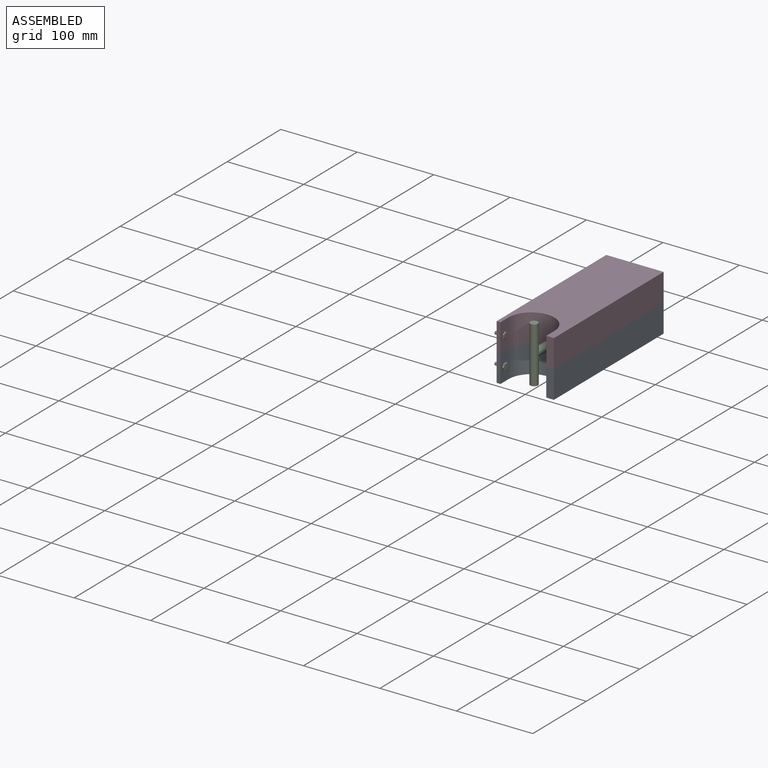
[diagram: assembled view]
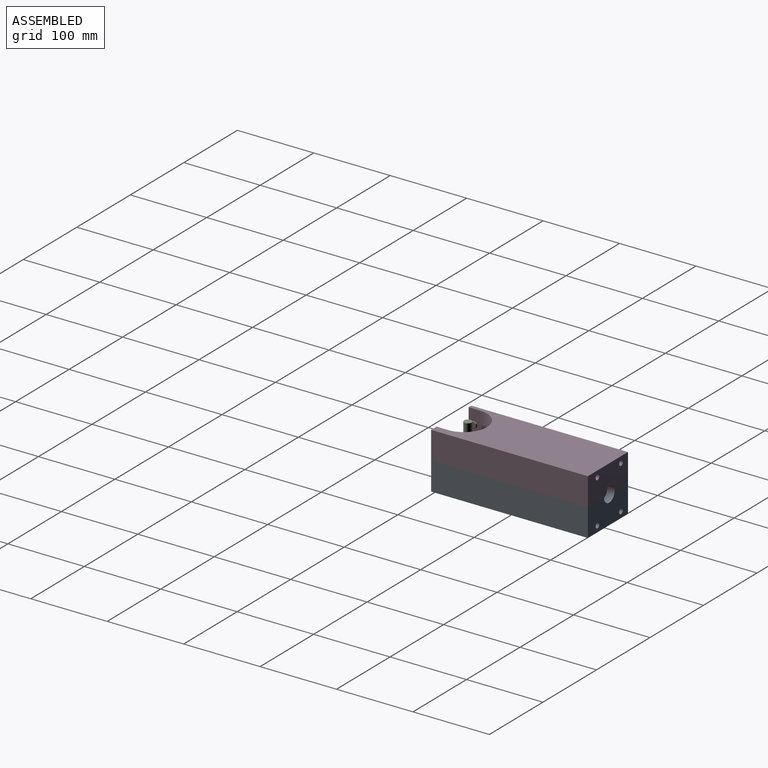
[diagram: assembled view, second angle]
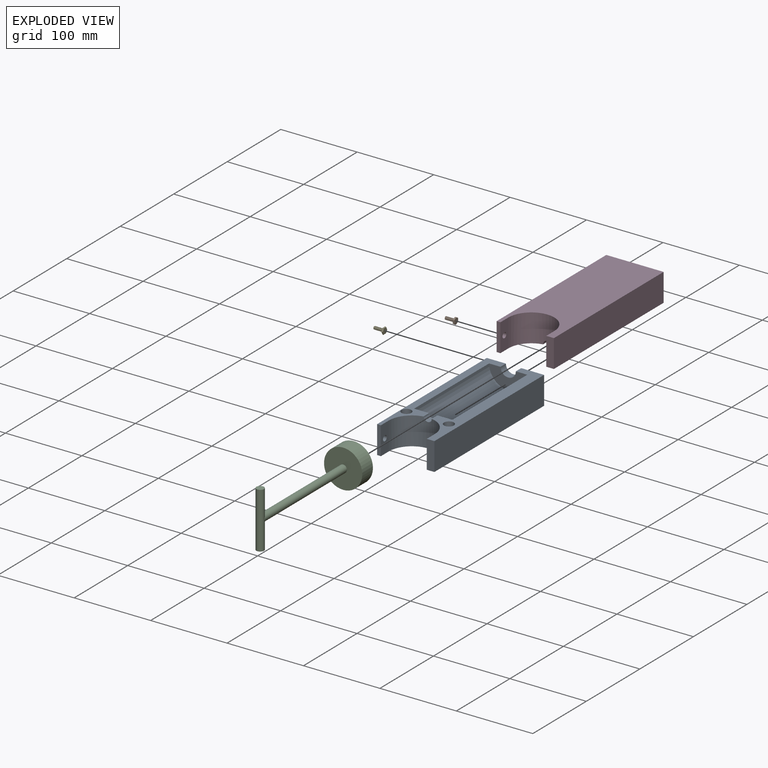
[diagram: exploded view]
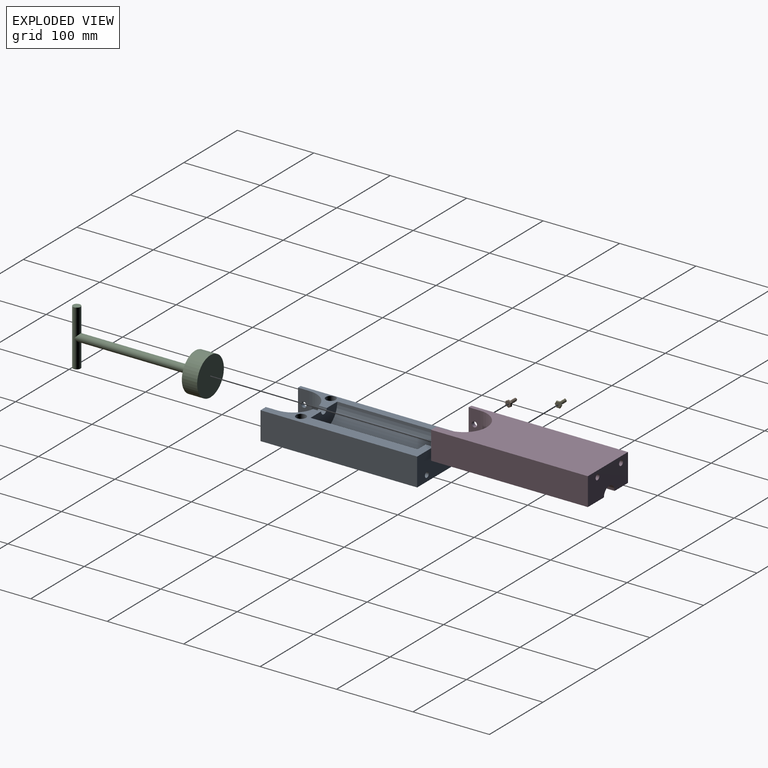
[diagram: exploded view, second angle]
ASSEMBLY  parts=5 mates=4
PART A: 23 faces, bbox 75x205x36.5 mm
  f0: cylinder r=30mm len=60mm, axis (0,0,1), area 3395.7mm2, adj f6,f7,f8,f13,f18,f19
  f1: plane 36.5x5mm, normal (0,-1,0), area 182.5mm2, adj f2,f6,f13,f19
  f2: plane 205x36.5mm, normal (-1,0,0), area 7444mm2, adj f1,f4,f13,f19,f20
  f3: plane 205x36.5mm, normal (1,0,0), area 7482.5mm2, adj f4,f5,f13,f18
  f4: plane 75x36.5mm, normal (0,1,0), area 2503.5mm2, adj f2,f3,f12,f13,f15,f17,f18,f19
  f5: plane 36.5x10mm, normal (0,-1,0), area 365mm2, adj f3,f7,f13,f18
  f6: plane 36.5x15mm, normal (1,0,0), area 509mm2, adj f0,f1,f13,f19,f20
  f7: plane 36.5x15mm, normal (-1,0,0), area 547.5mm2, adj f0,f5,f13,f18
  f8: cylinder r=5.3mm len=10.6mm, axis (0,-1,0), area 170.4mm2, adj f0,f9,f18,f19
  f9: plane 50x25mm, normal (0,1,0), area 937.6mm2, adj f8,f10,f18,f19
  f10: cylinder r=25mm len=140mm, axis (0,-1,0), area 10995.6mm2, adj f9,f11,f18,f19
  f11: plane 50x25mm, normal (0,-1,0), area 824.7mm2, adj f10,f12,f18,f19
  f12: cylinder r=10mm len=20mm, axis (0,-1,0), area 314.2mm2, adj f4,f11,f18,f19
  f13: plane 205x75mm, normal (0,0,-1), area 12795.8mm2, adj f0,f1,f2,f3,f4,f5,f6,f7
  f14: cone r=0mm half-angle=59deg, axis (0,1,0), area 44.9mm2, adj f15
  f15: cylinder r=3.5mm len=25mm, axis (0,1,0), area 549.8mm2, adj f4,f14
  f16: cone r=0mm half-angle=59deg, axis (0,1,0), area 44.9mm2, adj f17
  f17: cylinder r=3.5mm len=25mm, axis (0,1,0), area 549.8mm2, adj f4,f16
  f18: plane 205x34.7mm, normal (0,0,1), area 3256.6mm2, adj f0,f3,f4,f5,f7,f8,f9,f10
  f19: plane 205x29.7mm, normal (0,0,1), area 2231.6mm2, adj f0,f1,f2,f4,f6,f8,f9,f10
  f20: cylinder r=3.5mm len=7mm, axis (-1,0,0), area 110mm2, adj f2,f6
  f21: cylinder r=6.5mm len=36.5mm, axis (0,0,1), area 1490.7mm2, adj f13,f19
  f22: cylinder r=6.5mm len=36.5mm, axis (0,0,1), area 1490.7mm2, adj f13,f18
PART B: 27 faces, bbox 8.2x9.4x14.4 mm
  f0: plane 8.29x7.21mm, normal (0,0,1), area 34.7mm2, adj f1,f9,f10,f11,f12,f13,f14,f24
  f1: cylinder r=1.5mm len=12mm, axis (0,0,-1), area 63.4mm2, adj f0,f21,f23,f24,f25,f26
  f2: plane 4x2.31mm, normal (-0.5,-0.87,0), area 4.6mm2, adj f3,f7,f12,f18
  f3: plane 4x2.31mm, normal (0.5,-0.87,0), area 4.6mm2, adj f2,f4,f14,f20
  f4: plane 4.62x1mm, normal (1,0,0), area 4.6mm2, adj f3,f5,f13,f19
  f5: plane 4x2.31mm, normal (0.5,0.87,0), area 4.6mm2, adj f4,f6,f11,f17
  f6: plane 4x2.31mm, normal (-0.5,0.87,0), area 4.6mm2, adj f5,f7,f9,f15
  f7: plane 4.62x1mm, normal (-1,0,0), area 4.6mm2, adj f2,f6,f10,f16
  f8: plane 8.08x7mm, normal (0,0,-1), area 42.4mm2, adj f15,f16,f17,f18,f19,f20
  f9: plane 4x2.6mm, normal (-0.35,0.61,0.71), area 3.1mm2, adj f0,f6,f10,f11
  f10: plane 4.62x0.5mm, normal (-0.71,0,0.71), area 3.1mm2, adj f0,f7,f9,f12
  f11: plane 4x2.6mm, normal (0.35,0.61,0.71), area 3.1mm2, adj f0,f5,f9,f13
  f12: plane 4x2.6mm, normal (-0.35,-0.61,0.71), area 3.1mm2, adj f0,f2,f10,f14
  f13: plane 4.62x0.5mm, normal (0.71,0,0.71), area 3.1mm2, adj f0,f4,f11,f14
  f14: plane 4x2.6mm, normal (0.35,-0.61,0.71), area 3.1mm2, adj f0,f3,f12,f13
  f15: plane 4x2.6mm, normal (-0.35,0.61,-0.71), area 3.1mm2, adj f6,f8,f16,f17
  f16: plane 4.62x0.5mm, normal (-0.71,0,-0.71), area 3.1mm2, adj f7,f8,f15,f18
  f17: plane 4x2.6mm, normal (0.35,0.61,-0.71), area 3.1mm2, adj f5,f8,f15,f19
  f18: plane 4x2.6mm, normal (-0.35,-0.61,-0.71), area 3.1mm2, adj f2,f8,f16,f20
  f19: plane 4.62x0.5mm, normal (0.71,0,-0.71), area 3.1mm2, adj f4,f8,f17,f20
  f20: plane 4x2.6mm, normal (0.35,-0.61,-0.71), area 3.1mm2, adj f3,f8,f18,f19
  f21: plane 3x3mm, normal (0,0,1), area 7.1mm2, adj f1,f22
  f22: cylinder r=1.5mm len=1.39mm, axis (0,0,-1), area 0.1mm2, adj f21,f23,f26
  f23: plane 0.5x0.35mm, normal (0,1,0), area 0.1mm2, adj f1,f22,f25,f26
  f24: plane 0.5x0.15mm, normal (0,-1,0), area 0mm2, adj f0,f1,f26
  f25: bspline ~12.2x4.62mm, area 88.1mm2, adj f0,f1,f23,f26
  f26: bspline ~12.15x4.62mm, area 86.1mm2, adj f1,f22,f23,f24,f25
PART C: 7 faces, bbox 50x180x73 mm
  f0: cylinder r=5mm len=155mm, axis (0,1,0), area 4769.5mm2, adj f3,f6
  f1: cylinder r=25mm len=50mm, axis (0,-1,0), area 3141.6mm2, adj f2,f3
  f2: plane 50x50mm, normal (0,1,0), area 1963.5mm2, adj f1
  f3: plane 50x50mm, normal (0,-1,0), area 1885mm2, adj f0,f1
  f4: plane 10x10mm, normal (0,0,-1), area 78.5mm2, adj f6
  f5: plane 10x10mm, normal (0,0,1), area 78.5mm2, adj f6
  f6: cylinder r=5mm len=73mm, axis (0,0,1), area 2193.4mm2, adj f0,f4,f5
PART D: 25 faces, bbox 75x205x36.5 mm
  f0: cone r=0mm half-angle=59deg, axis (0,1,0), area 44.9mm2, adj f2
  f1: cone r=0mm half-angle=59deg, axis (0,1,0), area 44.9mm2, adj f3
  f2: cylinder r=3.5mm len=25mm, axis (0,1,0), area 549.8mm2, adj f0,f10
  f3: cylinder r=3.5mm len=25mm, axis (0,1,0), area 549.8mm2, adj f1,f10
  f4: plane 205x75mm, normal (0,0,1), area 13061.3mm2, adj f10,f11,f12,f13,f14,f15,f16,f17
  f5: cylinder r=10mm len=20mm, axis (0,-1,0), area 314.2mm2, adj f6,f10,f18,f19
  f6: plane 50x25mm, normal (0,-1,0), area 824.7mm2, adj f5,f7,f18,f19
  f7: cylinder r=25mm len=140mm, axis (0,-1,0), area 10995.6mm2, adj f6,f8,f18,f19
  f8: plane 50x25mm, normal (0,1,0), area 937.6mm2, adj f7,f9,f18,f19
  f9: cylinder r=5.3mm len=10.6mm, axis (0,-1,0), area 170.4mm2, adj f8,f17,f18,f19
  f10: plane 75x36.5mm, normal (0,1,0), area 2503.5mm2, adj f2,f3,f4,f5,f13,f14,f18,f19
  f11: plane 36.5x15mm, normal (-1,0,0), area 547.5mm2, adj f4,f12,f17,f18
  f12: plane 36.5x10mm, normal (0,-1,0), area 365mm2, adj f4,f11,f13,f18
  f13: plane 205x36.5mm, normal (1,0,0), area 7482.5mm2, adj f4,f10,f12,f18
  f14: plane 205x36.5mm, normal (-1,0,0), area 7444mm2, adj f4,f10,f16,f19,f20
  f15: plane 36.5x15mm, normal (1,0,0), area 509mm2, adj f4,f16,f17,f19,f20
  f16: plane 36.5x5mm, normal (0,-1,0), area 182.5mm2, adj f4,f14,f15,f19
  f17: cylinder r=30mm len=60mm, axis (0,0,1), area 3395.8mm2, adj f4,f9,f11,f15,f18,f19
  f18: plane 205x34.7mm, normal (0,0,-1), area 3350.8mm2, adj f5,f6,f7,f8,f9,f10,f11,f12
  f19: plane 205x29.7mm, normal (0,0,-1), area 2325.8mm2, adj f5,f6,f7,f8,f9,f10,f14,f15
  f20: cylinder r=3.5mm len=7mm, axis (-1,0,0), area 110mm2, adj f14,f15
  f21: cylinder r=3.5mm len=15mm, axis (0,0,1), area 329.9mm2, adj f19,f22
  f22: plane 7x7mm, normal (0,0,-1), area 38.5mm2, adj f21
  f23: cylinder r=3.5mm len=15mm, axis (0,0,1), area 329.9mm2, adj f18,f24
  f24: plane 7x7mm, normal (0,0,-1), area 38.5mm2, adj f23
PART E: same geometry as B
PLACE A at identity fixed
PLACE B rot(axis=(-0.58,-0.58,0.58),120deg) t=(-32.5,7.5,0)mm
PLACE C t=(-2.5,175,-18.25)mm
PLACE D rot(axis=(-0.7,0,-0.72),0deg) t=(0,0,0)mm
PLACE E rot(axis=(0,-1,0),90deg) t=(-32.5,7.5,-36.5)mm
MATE fastened A.f22 <-> D.f23  axis (0,0,1) through (25.3,44.53,-18.25)mm
MATE fastened D.f20 <-> B.f1  axis (-1,0,0) through (-37.5,7.5,0)mm
MATE slider C.f1 <-> A.f8  axis (0,1,0) through (-2.5,195,-18.25)mm
MATE fastened A.f20 <-> E.f1  axis (1,0,0) through (-32.5,7.5,-36.5)mm
